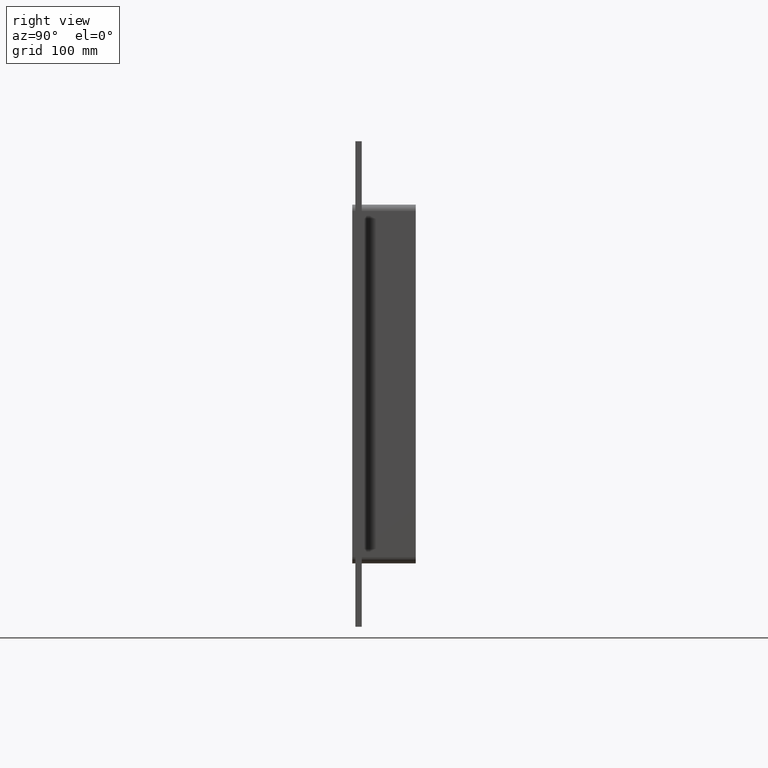
[diagram: clean part render]
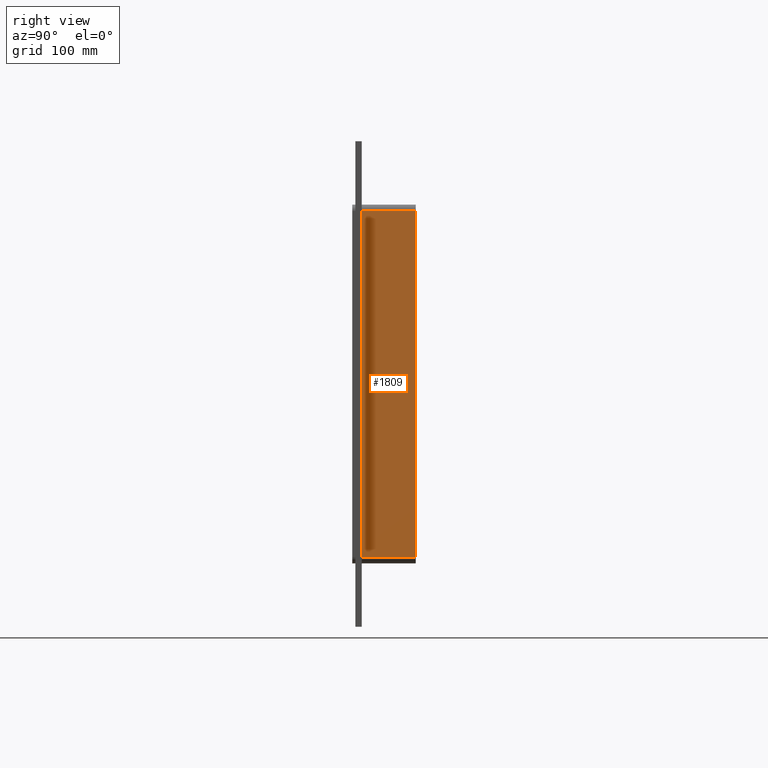
[diagram: same view with one face highlighted and labeled with its STEP entity id]
A machine part, right view. The second image highlights one B-rep face of the part: STEP entity #1809.
In plain terms, the highlighted planar face has unit normal (1, 0, 0).
Its self-contained STEP definition (entity closure, byte-faithful):
#563=CARTESIAN_POINT('',(196.75000000000006,57.0,-163.5));
#564=VERTEX_POINT('',#563);
#614=CARTESIAN_POINT('',(196.75000000000006,57.0,163.5));
#615=VERTEX_POINT('',#614);
#623=CARTESIAN_POINT('',(196.75000000000006,57.0,163.5));
#624=DIRECTION('',(0.0,0.0,-1.0));
#625=VECTOR('',#624,327.0);
#626=LINE('',#623,#625);
#627=EDGE_CURVE('',#615,#564,#626,.T.);
#1490=CARTESIAN_POINT('',(196.75000000000006,6.000000000000001,-163.5));
#1491=VERTEX_POINT('',#1490);
#1499=CARTESIAN_POINT('',(196.75000000000006,6.000000000000001,163.5));
#1500=VERTEX_POINT('',#1499);
#1501=CARTESIAN_POINT('',(196.75000000000006,6.000000000000001,163.5));
#1502=DIRECTION('',(0.0,0.0,-1.0));
#1503=VECTOR('',#1502,327.0);
#1504=LINE('',#1501,#1503);
#1505=EDGE_CURVE('',#1500,#1491,#1504,.T.);
#1760=CARTESIAN_POINT('',(196.75000000000006,6.000000000000001,163.5));
#1761=DIRECTION('',(0.0,1.0,0.0));
#1762=VECTOR('',#1761,51.0);
#1763=LINE('',#1760,#1762);
#1764=EDGE_CURVE('',#1500,#615,#1763,.T.);
#1793=CARTESIAN_POINT('',(196.75000000000006,0.0,169.50000000000003));
#1794=DIRECTION('',(1.0,0.0,0.0));
#1795=DIRECTION('',(0.0,0.0,-1.0));
#1796=AXIS2_PLACEMENT_3D('',#1793,#1794,#1795);
#1797=PLANE('',#1796);
#1798=ORIENTED_EDGE('',*,*,#1505,.T.);
#1799=CARTESIAN_POINT('',(196.75000000000006,57.0,-163.5));
#1800=DIRECTION('',(0.0,-1.0,0.0));
#1801=VECTOR('',#1800,51.0);
#1802=LINE('',#1799,#1801);
#1803=EDGE_CURVE('',#564,#1491,#1802,.T.);
#1804=ORIENTED_EDGE('',*,*,#1803,.F.);
#1805=ORIENTED_EDGE('',*,*,#627,.F.);
#1806=ORIENTED_EDGE('',*,*,#1764,.F.);
#1807=EDGE_LOOP('',(#1798,#1804,#1805,#1806));
#1808=FACE_OUTER_BOUND('',#1807,.T.);
#1809=ADVANCED_FACE('',(#1808),#1797,.T.);